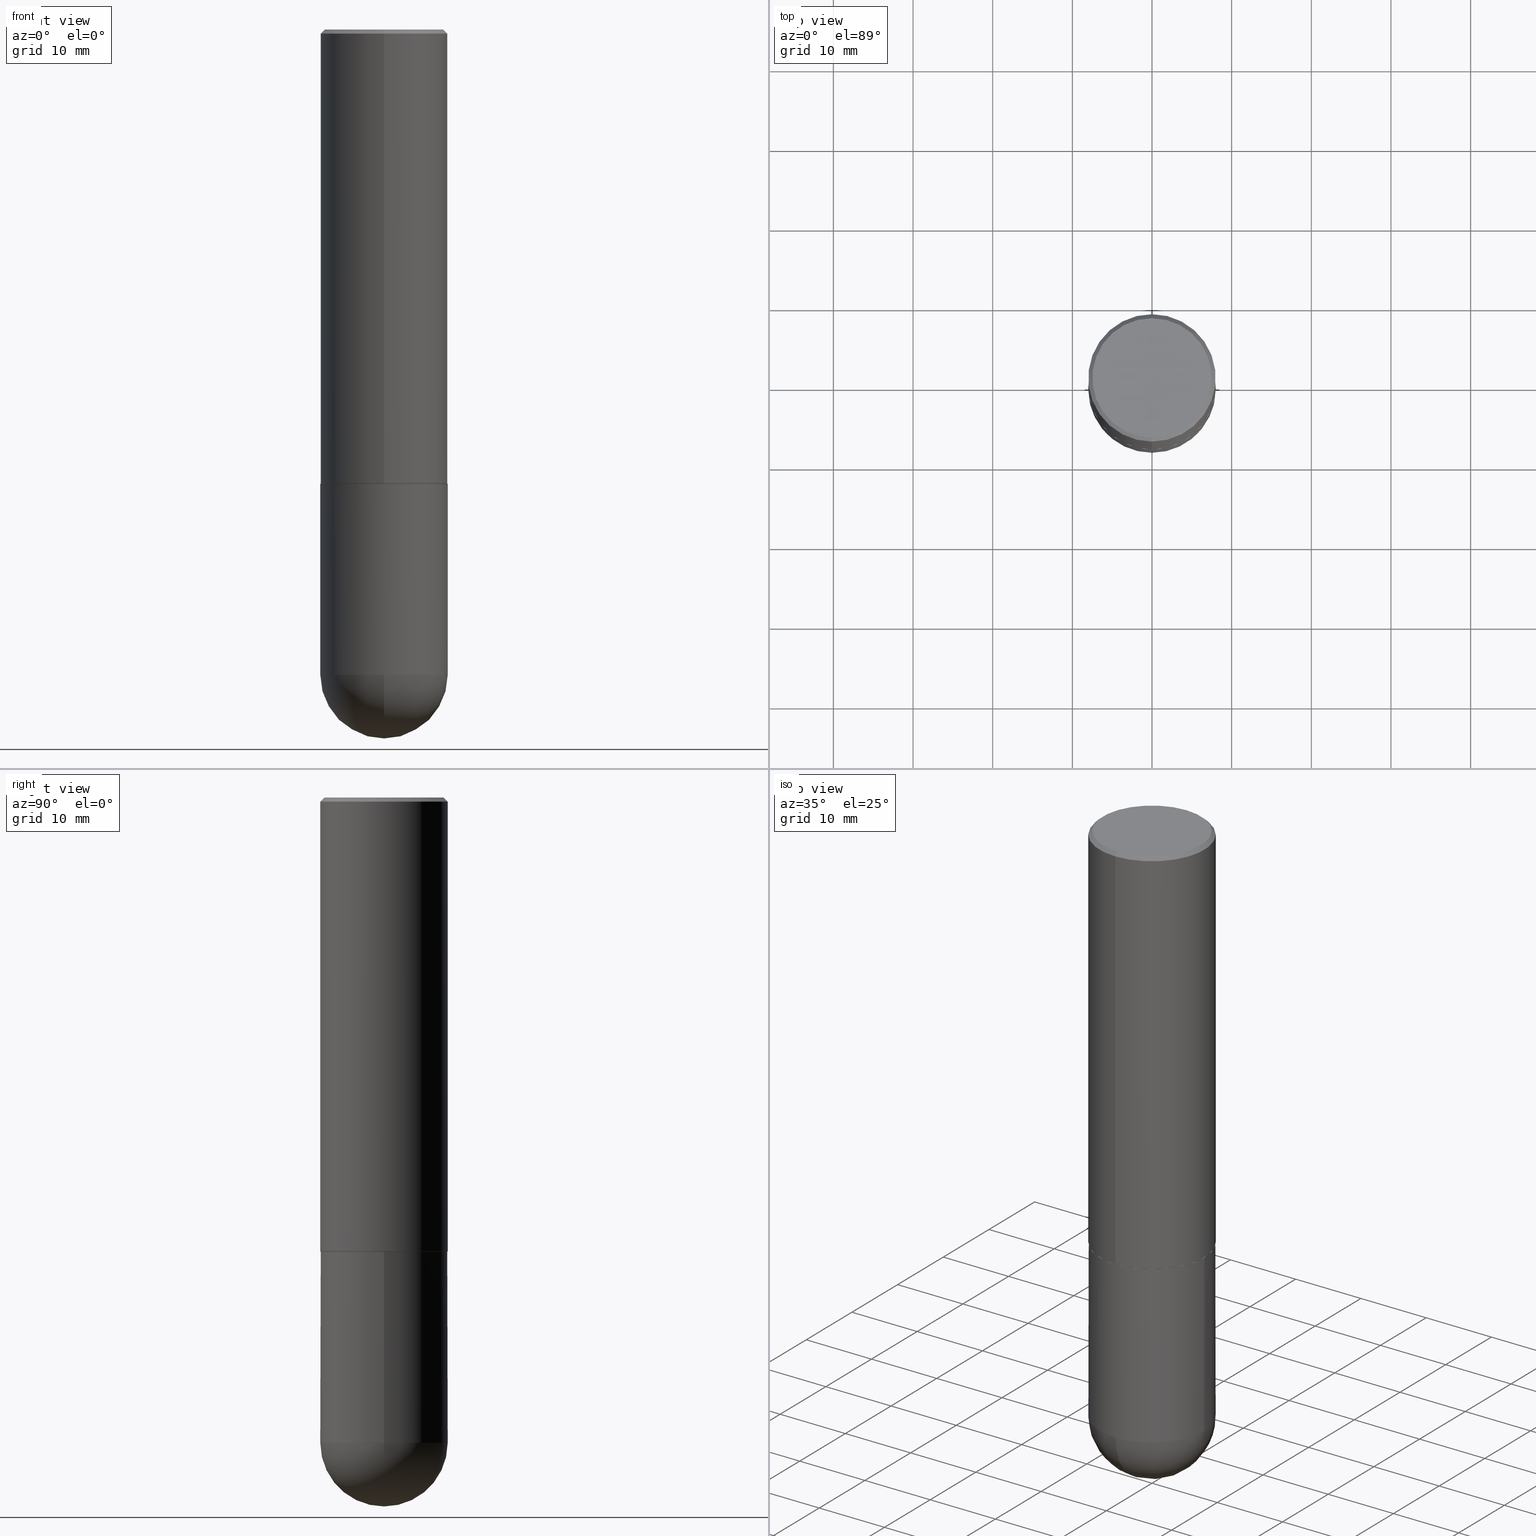
[diagram: canonical four-view strip — front | top / right | iso, engineering-drawing reading convention]
A machine part, canonical four-view strip (front | top / right | iso — engineering-drawing reading convention). The complete STEP part file that produces these views, byte-faithful:
ISO-10303-21;
HEADER;
FILE_DESCRIPTION (( 'STEP AP203' ),
    '1' );
FILE_NAME ('40174.STEP',
    '2024-04-10T11:40:53',
    ( '' ),
    ( '' ),
    'SwSTEP 2.0',
    'SolidWorks 2023',
    '' );
FILE_SCHEMA (( 'CONFIG_CONTROL_DESIGN' ));
ENDSEC;

DATA;
#1 = DIRECTION ( 'NONE',  ( 1.000000000000000000, -6.982962677686263555E-15, 0.000000000000000000 ) ) ;
#2 = FACE_OUTER_BOUND ( 'NONE', #147, .T. ) ;
#3 = DIRECTION ( 'NONE',  ( -2.446054750560314291E-29, 3.490642233148008459E-15, 1.000000000000000000 ) ) ;
#4 = DIRECTION ( 'NONE',  ( -2.446054750560314291E-29, 3.490642233148008459E-15, 1.000000000000000000 ) ) ;
#5 = PLANE ( 'NONE',  #103 ) ;
#6 = PERSON_AND_ORGANIZATION ( #402, #398 ) ;
#7 = DIRECTION ( 'NONE',  ( -6.982962677686265922E-15, -1.000000000000000000, 3.490642233148008065E-15 ) ) ;
#8 = APPROVAL_PERSON_ORGANIZATION ( #215, #301, #347 ) ;
#9 = DIRECTION ( 'NONE',  ( -6.982962677686266711E-15, -1.000000000000000000, 3.480615376543096131E-15 ) ) ;
#10 = DATE_AND_TIME ( #232, #407 ) ;
#11 = EDGE_CURVE ( 'NONE', #368, #267, #52, .T. ) ;
#12 = ORIENTED_EDGE ( 'NONE', *, *, #139, .T. ) ;
#13 = APPROVAL_ROLE ( '' ) ;
#14 = AXIS2_PLACEMENT_3D ( 'NONE', #390, #101, #173 ) ;
#15 = ADVANCED_FACE ( 'NONE', ( #51 ), #117, .T. ) ;
#16 = ORIENTED_EDGE ( 'NONE', *, *, #50, .T. ) ;
#17 = VERTEX_POINT ( 'NONE', #150 ) ;
#18 = DIRECTION ( 'NONE',  ( -2.445468806185136597E-29, 3.491481338843145583E-15, 1.000000000000000000 ) ) ;
#19 = EDGE_LOOP ( 'NONE', ( #12, #102 ) ) ;
#20 = EDGE_CURVE ( 'NONE', #364, #107, #374, .T. ) ;
#21 = APPROVAL_STATUS ( 'not_yet_approved' ) ;
#22 = EDGE_LOOP ( 'NONE', ( #136, #73, #155, #57 ) ) ;
#23 = CIRCLE ( 'NONE', #308, 0.3149500000000000077 ) ;
#24 = APPROVAL_PERSON_ORGANIZATION ( #365, #251, #13 ) ;
#25 = VERTEX_POINT ( 'NONE', #243 ) ;
#26 = EDGE_CURVE ( 'NONE', #17, #267, #357, .T. ) ;
#27 = CARTESIAN_POINT ( 'NONE',  ( 7.798477749484091354E-29, -1.113415941550384898E-14, -3.188949999999999729 ) ) ;
#28 = CARTESIAN_POINT ( 'NONE',  ( 0.000000000000000000, 0.000000000000000000, 0.000000000000000000 ) ) ;
#29 = CARTESIAN_POINT ( 'NONE',  ( -2.192301132659549031E-15, -0.3139500000000079449, -2.244099999999998651 ) ) ;
#30 = PLANE ( 'NONE',  #154 ) ;
#31 = VECTOR ( 'NONE', #130, 39.37007874015748143 ) ;
#32 = LOCAL_TIME ( 7, 40, 53.00000000000000000, #385 ) ;
#33 = CARTESIAN_POINT ( 'NONE',  ( 7.798477749484091354E-29, -1.113415941550384898E-14, -3.188949999999999729 ) ) ;
#34 = LINE ( 'NONE', #163, #31 ) ;
#35 = DIRECTION ( 'NONE',  ( -4.851104656540959542E-15, -0.7071067811865493491, -0.7071067811865454633 ) ) ;
#36 = CC_DESIGN_PERSON_AND_ORGANIZATION_ASSIGNMENT ( #406, #375, ( #41 ) ) ;
#37 = DIRECTION ( 'NONE',  ( -7.105427357600999492E-15, -1.000000000000000000, 0.000000000000000000 ) ) ;
#38 = CARTESIAN_POINT ( 'NONE',  ( 0.3149500000000000077, -1.168398043933816632E-14, -3.188949999999999729 ) ) ;
#39 = AXIS2_PLACEMENT_3D ( 'NONE', #95, #222, #123 ) ;
#40 = AXIS2_PLACEMENT_3D ( 'NONE', #97, #4, #280 ) ;
#41 = PRODUCT ( '40174', '40174', '', ( #47 ) ) ;
#42 = PRODUCT_DEFINITION ( 'UNKNOWN', '', #358, #334 ) ;
#43 = COORDINATED_UNIVERSAL_TIME_OFFSET ( 5, 0, .BEHIND. ) ;
#44 = SPHERICAL_SURFACE ( 'NONE', #14, 0.3149500000000001743 ) ;
#45 = EDGE_CURVE ( 'NONE', #25, #230, #177, .T. ) ;
#46 = SECURITY_CLASSIFICATION ( '', '', #330 ) ;
#47 = MECHANICAL_CONTEXT ( 'NONE', #206, 'mechanical' ) ;
#48 = ORIENTED_EDGE ( 'NONE', *, *, #369, .T. ) ;
#49 = AXIS2_PLACEMENT_3D ( 'NONE', #93, #185, #1 ) ;
#50 = EDGE_CURVE ( 'NONE', #77, #107, #23, .T. ) ;
#51 = FACE_OUTER_BOUND ( 'NONE', #152, .T. ) ;
#52 = LINE ( 'NONE', #78, #405 ) ;
#53 = COORDINATED_UNIVERSAL_TIME_OFFSET ( 5, 0, .BEHIND. ) ;
#54 = ORIENTED_EDGE ( 'NONE', *, *, #219, .T. ) ;
#55 = AXIS2_PLACEMENT_3D ( 'NONE', #354, #160, #248 ) ;
#56 = LOCAL_TIME ( 7, 40, 53.00000000000000000, #362 ) ;
#57 = ORIENTED_EDGE ( 'NONE', *, *, #69, .F. ) ;
#58 = DIRECTION ( 'NONE',  ( -4.937700262164884886E-15, -0.7071067811865933139, 0.7071067811865017205 ) ) ;
#59 = FACE_OUTER_BOUND ( 'NONE', #19, .T. ) ;
#60 = DIRECTION ( 'NONE',  ( -2.445468806185136597E-29, 3.491481338843145583E-15, 1.000000000000000000 ) ) ;
#61 = LOCAL_TIME ( 7, 40, 53.00000000000000000, #43 ) ;
#62 = ADVANCED_FACE ( 'NONE', ( #226 ), #349, .T. ) ;
#63 = FACE_OUTER_BOUND ( 'NONE', #331, .T. ) ;
#64 = DIRECTION ( 'NONE',  ( -6.982962677686265922E-15, -1.000000000000000000, 3.490642233148008854E-15 ) ) ;
#65 = LENGTH_MEASURE_WITH_UNIT ( LENGTH_MEASURE( 0.02539999999999999897 ), #140 );
#66 = CARTESIAN_POINT ( 'NONE',  ( 5.489191465732400320E-29, -7.833350235407443632E-15, -2.244099999999999540 ) ) ;
#67 = PERSON_AND_ORGANIZATION_ROLE ( 'classification_officer' ) ;
#68 = CARTESIAN_POINT ( 'NONE',  ( 7.467357971570205107E-29, -1.160834178364390085E-14, -3.188949999999999729 ) ) ;
#69 = EDGE_CURVE ( 'NONE', #302, #278, #313, .T. ) ;
#70 = AXIS2_PLACEMENT_3D ( 'NONE', #383, #257, #37 ) ;
#71 = EDGE_LOOP ( 'NONE', ( #212, #203, #174, #181 ) ) ;
#72 = APPLICATION_PROTOCOL_DEFINITION ( 'international standard', 'config_control_design', 1994, #206 ) ;
#73 = ORIENTED_EDGE ( 'NONE', *, *, #106, .T. ) ;
#74 = ORIENTED_EDGE ( 'NONE', *, *, #266, .T. ) ;
#75 = CARTESIAN_POINT ( 'NONE',  ( 5.489191465732400320E-29, -7.833350235407443632E-15, -2.244099999999999540 ) ) ;
#76 = CARTESIAN_POINT ( 'NONE',  ( 0.000000000000000000, 0.000000000000000000, 0.000000000000000000 ) ) ;
#77 = VERTEX_POINT ( 'NONE', #221 ) ;
#78 = CARTESIAN_POINT ( 'NONE',  ( -0.3149500000000000077, 2.237854346276435590E-15, -1.549218606675782676E-29 ) ) ;
#79 = CC_DESIGN_PERSON_AND_ORGANIZATION_ASSIGNMENT ( #6, #389, ( #358 ) ) ;
#80 = DIRECTION ( 'NONE',  ( -2.445468806185136877E-29, 3.491481338843145188E-15, 1.000000000000000000 ) ) ;
#81 = CIRCLE ( 'NONE', #397, 0.3149500000000000077 ) ;
#82 = CIRCLE ( 'NONE', #343, 0.3149500000000000077 ) ;
#83 = ORIENTED_EDGE ( 'NONE', *, *, #50, .F. ) ;
#84 = APPLICATION_PROTOCOL_DEFINITION ( 'international standard', 'config_control_design', 1994, #323 ) ;
#85 = DIRECTION ( 'NONE',  ( -6.982962677686264344E-15, -1.000000000000000000, 3.490642233148007670E-15 ) ) ;
#86 = EDGE_LOOP ( 'NONE', ( #270, #394, #211, #344 ) ) ;
#87 = VECTOR ( 'NONE', #192, 39.37007874015748143 ) ;
#88 = CARTESIAN_POINT ( 'NONE',  ( -5.423274087960184450E-45, 7.739282846810618140E-31, 2.217151552604406197E-16 ) ) ;
#89 = CARTESIAN_POINT ( 'NONE',  ( -2.192301132659549031E-15, -0.3139500000000079449, -2.244099999999998651 ) ) ;
#90 = CYLINDRICAL_SURFACE ( 'NONE', #39, 0.3149500000000000077 ) ;
#91 = CARTESIAN_POINT ( 'NONE',  ( 2.129454468560426178E-15, 0.2949499999999997679, -8.078497714065635911E-16 ) ) ;
#92 = ADVANCED_FACE ( 'NONE', ( #59 ), #287, .F. ) ;
#93 = CARTESIAN_POINT ( 'NONE',  ( 7.798477749484091354E-29, -1.113415941550384898E-14, -3.188949999999999729 ) ) ;
#94 = AXIS2_PLACEMENT_3D ( 'NONE', #303, #124, #161 ) ;
#95 = CARTESIAN_POINT ( 'NONE',  ( 0.000000000000000000, 0.000000000000000000, 0.000000000000000000 ) ) ;
#96 = CALENDAR_DATE ( 2024, 10, 4 ) ;
#97 = CARTESIAN_POINT ( 'NONE',  ( 5.486745410981840048E-29, -7.829859593174295686E-15, -2.243099999999999650 ) ) ;
#98 = CARTESIAN_POINT ( 'NONE',  ( 4.892109501120646730E-31, -6.981284466296042310E-17, -0.02000000000000007327 ) ) ;
#99 = EDGE_CURVE ( 'NONE', #274, #25, #328, .T. ) ;
#100 = DIRECTION ( 'NONE',  ( -2.446054750560314291E-29, 3.490642233148008459E-15, 1.000000000000000000 ) ) ;
#101 = DIRECTION ( 'NONE',  ( -1.000000000000000000, 6.982962677686265133E-15, -4.883557194083112901E-29 ) ) ;
#102 = ORIENTED_EDGE ( 'NONE', *, *, #175, .T. ) ;
#103 = AXIS2_PLACEMENT_3D ( 'NONE', #66, #125, #64 ) ;
#104 = PRODUCT_DEFINITION_SHAPE ( 'NONE', 'NONE',  #42 ) ;
#105 = COORDINATED_UNIVERSAL_TIME_OFFSET ( 5, 0, .BEHIND. ) ;
#106 = EDGE_CURVE ( 'NONE', #216, #346, #281, .T. ) ;
#107 = VERTEX_POINT ( 'NONE', #166 ) ;
#108 = AXIS2_PLACEMENT_3D ( 'NONE', #320, #246, #352 ) ;
#109 = DIRECTION ( 'NONE',  ( 1.000000000000000000, -6.982962677686263555E-15, 0.000000000000000000 ) ) ;
#110 = EDGE_CURVE ( 'NONE', #230, #341, #300, .T. ) ;
#111 = ORIENTED_EDGE ( 'NONE', *, *, #144, .T. ) ;
#112 = CARTESIAN_POINT ( 'NONE',  ( -2.199284095337290265E-15, -0.3149500000000001743, 1.099377771329965583E-15 ) ) ;
#113 = ORIENTED_EDGE ( 'NONE', *, *, #45, .T. ) ;
#114 = CLOSED_SHELL ( 'NONE', ( #236, #15, #209, #62, #272, #204, #191, #92 ) ) ;
#115 = VECTOR ( 'NONE', #35, 39.37007874015748854 ) ;
#116 = PERSON_AND_ORGANIZATION ( #402, #398 ) ;
#117 = CYLINDRICAL_SURFACE ( 'NONE', #255, 0.3149500000000001743 ) ;
#118 = ORIENTED_EDGE ( 'NONE', *, *, #367, .F. ) ;
#119 = DIRECTION ( 'NONE',  ( -2.446054750560314291E-29, 3.490642233148008459E-15, 1.000000000000000000 ) ) ;
#120 = FACE_OUTER_BOUND ( 'NONE', #391, .T. ) ;
#121 = CARTESIAN_POINT ( 'NONE',  ( 7.798477749484091354E-29, -1.113415941550384898E-14, -3.188949999999999729 ) ) ;
#122 = ADVANCED_FACE ( 'NONE', ( #120 ), #381, .T. ) ;
#123 = DIRECTION ( 'NONE',  ( 1.000000000000000000, -6.982962677686266711E-15, 4.876176775795936353E-29 ) ) ;
#124 = DIRECTION ( 'NONE',  ( -2.445468806185136597E-29, 3.491481338843145583E-15, 1.000000000000000000 ) ) ;
#125 = DIRECTION ( 'NONE',  ( -2.446054750560313731E-29, 3.490642233148008854E-15, 1.000000000000000000 ) ) ;
#126 = DATE_TIME_ROLE ( 'classification_date' ) ;
#127 = FACE_OUTER_BOUND ( 'NONE', #239, .T. ) ;
#128 = EDGE_CURVE ( 'NONE', #230, #17, #34, .T. ) ;
#129 = AXIS2_PLACEMENT_3D ( 'NONE', #75, #156, #148 ) ;
#130 = DIRECTION ( 'NONE',  ( -2.445468806185136877E-29, 3.491481338843145188E-15, 1.000000000000000000 ) ) ;
#131 = DATE_TIME_ROLE ( 'creation_date' ) ;
#132 = FACE_OUTER_BOUND ( 'NONE', #22, .T. ) ;
#133 = CALENDAR_DATE ( 2024, 10, 4 ) ;
#134 = DIRECTION ( 'NONE',  ( 1.000000000000000000, -6.982962677686265922E-15, 4.883557194083112340E-29 ) ) ;
#135 = PERSON_AND_ORGANIZATION ( #402, #398 ) ;
#136 = ORIENTED_EDGE ( 'NONE', *, *, #231, .T. ) ;
#137 = AXIS2_PLACEMENT_3D ( 'NONE', #98, #196, #325 ) ;
#138 = AXIS2_PLACEMENT_3D ( 'NONE', #28, #312, #158 ) ;
#139 = EDGE_CURVE ( 'NONE', #364, #296, #262, .T. ) ;
#140 =( LENGTH_UNIT ( ) NAMED_UNIT ( * ) SI_UNIT ( $, .METRE. ) );
#141 = ORIENTED_EDGE ( 'NONE', *, *, #110, .T. ) ;
#142 = ORIENTED_EDGE ( 'NONE', *, *, #345, .F. ) ;
#143 = ADVANCED_BREP_SHAPE_REPRESENTATION ( '40174', ( #297, #307, #380 ), #290 ) ;
#144 = EDGE_CURVE ( 'NONE', #341, #368, #81, .T. ) ;
#145 = ORIENTED_EDGE ( 'NONE', *, *, #345, .T. ) ;
#146 = CIRCLE ( 'NONE', #329, 0.3149500000000001743 ) ;
#147 = EDGE_LOOP ( 'NONE', ( #333, #207 ) ) ;
#148 = DIRECTION ( 'NONE',  ( -6.982962677686266711E-15, -1.000000000000000000, 3.480615376543096131E-15 ) ) ;
#149 = DIRECTION ( 'NONE',  ( 1.000000000000000000, -6.982962677686263555E-15, 0.000000000000000000 ) ) ;
#150 = CARTESIAN_POINT ( 'NONE',  ( 0.3149500000000000077, -1.003451736783519063E-14, -2.244099999999999540 ) ) ;
#151 = DATE_AND_TIME ( #305, #387 ) ;
#152 = EDGE_LOOP ( 'NONE', ( #238, #396, #83, #142 ) ) ;
#153 = CLOSED_SHELL ( 'NONE', ( #324, #410, #122, #315, #165 ) ) ;
#154 = AXIS2_PLACEMENT_3D ( 'NONE', #227, #360, #283 ) ;
#155 = ORIENTED_EDGE ( 'NONE', *, *, #277, .F. ) ;
#156 = DIRECTION ( 'NONE',  ( -2.446054750560314291E-29, 3.490642233148008459E-15, 1.000000000000000000 ) ) ;
#157 = CARTESIAN_POINT ( 'NONE',  ( 2.234301632597690701E-15, 0.3139499999999922353, -2.244100000000000872 ) ) ;
#158 = DIRECTION ( 'NONE',  ( -6.982962677686264344E-15, -1.000000000000000000, 3.490642233148007670E-15 ) ) ;
#159 = APPROVAL ( #170, 'UNSPECIFIED' ) ;
#160 = DIRECTION ( 'NONE',  ( 2.446054750560314291E-29, -3.490642233148008459E-15, -1.000000000000000000 ) ) ;
#161 = DIRECTION ( 'NONE',  ( 1.000000000000000000, -6.982962677686266711E-15, 4.876176775795936353E-29 ) ) ;
#162 = APPROVAL_PERSON_ORGANIZATION ( #229, #159, #264 ) ;
#163 = CARTESIAN_POINT ( 'NONE',  ( 0.3149500000000000077, -2.199284095337289871E-15, 1.535751875536930130E-29 ) ) ;
#164 = CYLINDRICAL_SURFACE ( 'NONE', #138, 0.3149500000000001743 ) ;
#165 = ADVANCED_FACE ( 'NONE', ( #316 ), #90, .T. ) ;
#166 = CARTESIAN_POINT ( 'NONE',  ( 2.199284095337289871E-15, 0.3149499999999999522, -0.02000000000000117309 ) ) ;
#167 = AXIS2_PLACEMENT_3D ( 'NONE', #285, #187, #224 ) ;
#168 = CARTESIAN_POINT ( 'NONE',  ( 5.489191465732400320E-29, -7.833350235407443632E-15, -2.244099999999999540 ) ) ;
#169 =( CONVERSION_BASED_UNIT ( 'INCH', #65 ) LENGTH_UNIT ( ) NAMED_UNIT ( #298 ) );
#170 = APPROVAL_STATUS ( 'not_yet_approved' ) ;
#171 = VECTOR ( 'NONE', #359, 39.37007874015748143 ) ;
#172 = AXIS2_PLACEMENT_3D ( 'NONE', #168, #291, #9 ) ;
#173 = DIRECTION ( 'NONE',  ( 6.982962677686265133E-15, 1.000000000000000000, -3.469564049740291586E-15 ) ) ;
#174 = ORIENTED_EDGE ( 'NONE', *, *, #339, .F. ) ;
#175 = EDGE_CURVE ( 'NONE', #296, #364, #218, .T. ) ;
#176 = ORIENTED_EDGE ( 'NONE', *, *, #11, .T. ) ;
#177 = CIRCLE ( 'NONE', #208, 0.3149500000000000077 ) ;
#178 = CYLINDRICAL_SURFACE ( 'NONE', #94, 0.3149500000000000077 ) ;
#179 = EDGE_LOOP ( 'NONE', ( #111, #176, #350, #299, #141 ) ) ;
#180 = DIRECTION ( 'NONE',  ( -2.446054750560314291E-29, 3.490642233148008459E-15, 1.000000000000000000 ) ) ;
#181 = ORIENTED_EDGE ( 'NONE', *, *, #144, .F. ) ;
#182 = VECTOR ( 'NONE', #408, 39.37007874015748854 ) ;
#183 = ORIENTED_EDGE ( 'NONE', *, *, #20, .F. ) ;
#184 = LINE ( 'NONE', #254, #115 ) ;
#185 = DIRECTION ( 'NONE',  ( -2.445468806185136597E-29, 3.491481338843145583E-15, 1.000000000000000000 ) ) ;
#186 = CARTESIAN_POINT ( 'NONE',  ( 2.237854346276435985E-15, 0.3149500000000001743, -1.099377771329965583E-15 ) ) ;
#187 = DIRECTION ( 'NONE',  ( -1.000000000000000000, 6.982962677686265133E-15, -4.883557194083112901E-29 ) ) ;
#188 = DIRECTION ( 'NONE',  ( 1.000000000000000000, -6.982962677686266711E-15, 0.000000000000000000 ) ) ;
#189 = VECTOR ( 'NONE', #249, 39.37007874015748143 ) ;
#190 = DIRECTION ( 'NONE',  ( -6.982962677686265922E-15, -1.000000000000000000, 3.496670018878889100E-15 ) ) ;
#191 = ADVANCED_FACE ( 'NONE', ( #63 ), #5, .F. ) ;
#192 = DIRECTION ( 'NONE',  ( -2.446054750560314291E-29, 3.490642233148008854E-15, 1.000000000000000000 ) ) ;
#193 = DIRECTION ( 'NONE',  ( -2.446054750560314291E-29, 3.490642233148008459E-15, 1.000000000000000000 ) ) ;
#194 = DATE_AND_TIME ( #332, #56 ) ;
#195 = CARTESIAN_POINT ( 'NONE',  ( 4.892109501120646730E-31, -6.981284466296042310E-17, -0.02000000000000007327 ) ) ;
#196 = DIRECTION ( 'NONE',  ( 2.446054750560314291E-29, -3.490642233148008459E-15, -1.000000000000000000 ) ) ;
#197 = DATE_AND_TIME ( #96, #32 ) ;
#198 = DIRECTION ( 'NONE',  ( 6.982962677686264344E-15, 1.000000000000000000, 0.000000000000000000 ) ) ;
#199 = AXIS2_PLACEMENT_3D ( 'NONE', #88, #3, #7 ) ;
#200 = CC_DESIGN_APPROVAL ( #301, ( #42 ) ) ;
#201 = PERSON_AND_ORGANIZATION ( #402, #398 ) ;
#202 =( NAMED_UNIT ( * ) SI_UNIT ( $, .STERADIAN. ) SOLID_ANGLE_UNIT ( ) );
#203 = ORIENTED_EDGE ( 'NONE', *, *, #99, .T. ) ;
#204 = ADVANCED_FACE ( 'NONE', ( #252 ), #284, .T. ) ;
#205 = ORIENTED_EDGE ( 'NONE', *, *, #20, .T. ) ;
#206 = APPLICATION_CONTEXT ( 'configuration controlled 3d designs of mechanical parts and assemblies' ) ;
#207 = ORIENTED_EDGE ( 'NONE', *, *, #367, .T. ) ;
#208 = AXIS2_PLACEMENT_3D ( 'NONE', #27, #399, #109 ) ;
#209 = ADVANCED_FACE ( 'NONE', ( #279 ), #317, .T. ) ;
#210 = DIRECTION ( 'NONE',  ( 0.000000000000000000, 0.000000000000000000, 1.000000000000000000 ) ) ;
#211 = ORIENTED_EDGE ( 'NONE', *, *, #69, .T. ) ;
#212 = ORIENTED_EDGE ( 'NONE', *, *, #393, .F. ) ;
#213 = CIRCLE ( 'NONE', #269, 0.3149500000000000077 ) ;
#214 = ORIENTED_EDGE ( 'NONE', *, *, #175, .F. ) ;
#215 = PERSON_AND_ORGANIZATION ( #402, #398 ) ;
#216 = VERTEX_POINT ( 'NONE', #157 ) ;
#217 = DIRECTION ( 'NONE',  ( -2.445468806185136597E-29, 3.491481338843145583E-15, 1.000000000000000000 ) ) ;
#218 = CIRCLE ( 'NONE', #268, 0.2949499999999997679 ) ;
#219 = EDGE_CURVE ( 'NONE', #346, #278, #372, .T. ) ;
#220 = CIRCLE ( 'NONE', #40, 0.3149500000000002853 ) ;
#221 = CARTESIAN_POINT ( 'NONE',  ( -2.160713844398143363E-15, -0.3149500000000000632, -0.01999999999999896999 ) ) ;
#222 = DIRECTION ( 'NONE',  ( -2.445468806185136597E-29, 3.491481338843145583E-15, 1.000000000000000000 ) ) ;
#223 = CARTESIAN_POINT ( 'NONE',  ( 5.487876547960064752E-29, -7.835233272497900762E-15, -2.244099999999999540 ) ) ;
#224 = DIRECTION ( 'NONE',  ( 6.982962677686265133E-15, 1.000000000000000000, -3.469564049740291586E-15 ) ) ;
#225 = CONICAL_SURFACE ( 'NONE', #129, 0.3139500000000000624, 0.7853981633975165577 ) ;
#226 = FACE_OUTER_BOUND ( 'NONE', #271, .T. ) ;
#227 = CARTESIAN_POINT ( 'NONE',  ( 2.199284095337344302E-15, 0.3149499999999921807, -2.244100000000000872 ) ) ;
#228 = CARTESIAN_POINT ( 'NONE',  ( 2.230748918918889408E-15, 0.3139499999999922353, -2.244100000000000872 ) ) ;
#229 = PERSON_AND_ORGANIZATION ( #402, #398 ) ;
#230 = VERTEX_POINT ( 'NONE', #38 ) ;
#231 = EDGE_CURVE ( 'NONE', #302, #216, #373, .T. ) ;
#232 = CALENDAR_DATE ( 2024, 10, 4 ) ;
#233 = FACE_OUTER_BOUND ( 'NONE', #71, .T. ) ;
#234 = UNCERTAINTY_MEASURE_WITH_UNIT (LENGTH_MEASURE( 1.000000000000000082E-05 ), #169, 'distance_accuracy_value', 'NONE');
#235 = ORIENTED_EDGE ( 'NONE', *, *, #231, .F. ) ;
#236 = ADVANCED_FACE ( 'NONE', ( #132 ), #225, .T. ) ;
#237 = CARTESIAN_POINT ( 'NONE',  ( 5.489191465732400320E-29, -7.833350235407443632E-15, -2.244099999999999540 ) ) ;
#238 = ORIENTED_EDGE ( 'NONE', *, *, #277, .T. ) ;
#239 = EDGE_LOOP ( 'NONE', ( #294, #54, #145, #241 ) ) ;
#240 = EDGE_CURVE ( 'NONE', #346, #107, #355, .T. ) ;
#241 = ORIENTED_EDGE ( 'NONE', *, *, #369, .F. ) ;
#242 = PERSON_AND_ORGANIZATION_ROLE ( 'creator' ) ;
#243 = CARTESIAN_POINT ( 'NONE',  ( -2.237854346276359071E-15, -0.3149500000000114985, -3.188949999999998841 ) ) ;
#244 = CC_DESIGN_PERSON_AND_ORGANIZATION_ASSIGNMENT ( #116, #242, ( #42 ) ) ;
#245 = CARTESIAN_POINT ( 'NONE',  ( 2.199284095337289871E-15, 0.3149499999999999522, -0.02000000000000117309 ) ) ;
#246 = DIRECTION ( 'NONE',  ( 2.446054750560313731E-29, -3.490642233148008854E-15, -1.000000000000000000 ) ) ;
#247 = CARTESIAN_POINT ( 'NONE',  ( -0.3149500000000000077, -7.246841997724440463E-15, -2.244099999999999540 ) ) ;
#248 = DIRECTION ( 'NONE',  ( 6.982962677686265922E-15, 1.000000000000000000, -3.496670018878889100E-15 ) ) ;
#249 = DIRECTION ( 'NONE',  ( -2.446054750560314291E-29, 3.490642233148008854E-15, 1.000000000000000000 ) ) ;
#250 = DIRECTION ( 'NONE',  ( -6.982962677686265922E-15, -1.000000000000000000, 3.490642233148008065E-15 ) ) ;
#251 = APPROVAL ( #292, 'UNSPECIFIED' ) ;
#252 = FACE_OUTER_BOUND ( 'NONE', #86, .T. ) ;
#253 = DATE_AND_TIME ( #133, #61 ) ;
#254 = CARTESIAN_POINT ( 'NONE',  ( -2.160713844398143363E-15, -0.3149500000000000632, -0.01999999999999896999 ) ) ;
#255 = AXIS2_PLACEMENT_3D ( 'NONE', #276, #180, #85 ) ;
#256 = CC_DESIGN_SECURITY_CLASSIFICATION ( #46, ( #358 ) ) ;
#257 = DIRECTION ( 'NONE',  ( -1.000000000000000000, 7.105427357601001070E-15, -4.926315508542082329E-29 ) ) ;
#258 = APPROVAL_DATE_TIME ( #10, #159 ) ;
#259 = DIRECTION ( 'NONE',  ( -6.982962677686265922E-15, -1.000000000000000000, 3.469564049740290009E-15 ) ) ;
#260 = CC_DESIGN_DATE_AND_TIME_ASSIGNMENT ( #253, #131, ( #42 ) ) ;
#261 = ORIENTED_EDGE ( 'NONE', *, *, #393, .T. ) ;
#262 = CIRCLE ( 'NONE', #199, 0.2949499999999997679 ) ;
#263 = CC_DESIGN_APPROVAL ( #251, ( #46 ) ) ;
#264 = APPROVAL_ROLE ( '' ) ;
#265 = DIRECTION ( 'NONE',  ( -2.446054750560314291E-29, 3.490642233148008459E-15, 1.000000000000000000 ) ) ;
#266 = EDGE_CURVE ( 'NONE', #296, #77, #184, .T. ) ;
#267 = VERTEX_POINT ( 'NONE', #247 ) ;
#268 = AXIS2_PLACEMENT_3D ( 'NONE', #288, #356, #250 ) ;
#269 = AXIS2_PLACEMENT_3D ( 'NONE', #223, #60, #188 ) ;
#270 = ORIENTED_EDGE ( 'NONE', *, *, #106, .F. ) ;
#271 = EDGE_LOOP ( 'NONE', ( #306, #403, #205, #48 ) ) ;
#272 = ADVANCED_FACE ( 'NONE', ( #127 ), #164, .T. ) ;
#273 = CARTESIAN_POINT ( 'NONE',  ( 2.199284095337366390E-15, 0.3149499999999886835, -3.188950000000001062 ) ) ;
#274 = VERTEX_POINT ( 'NONE', #386 ) ;
#275 = APPROVAL_DATE_TIME ( #151, #301 ) ;
#276 = CARTESIAN_POINT ( 'NONE',  ( 0.000000000000000000, 0.000000000000000000, 0.000000000000000000 ) ) ;
#277 = EDGE_CURVE ( 'NONE', #278, #346, #220, .T. ) ;
#278 = VERTEX_POINT ( 'NONE', #286 ) ;
#279 = FACE_OUTER_BOUND ( 'NONE', #377, .T. ) ;
#280 = DIRECTION ( 'NONE',  ( -6.982962677686265922E-15, -1.000000000000000000, 3.469564049740290009E-15 ) ) ;
#281 = LINE ( 'NONE', #228, #171 ) ;
#282 = AXIS2_PLACEMENT_3D ( 'NONE', #384, #321, #388 ) ;
#283 = DIRECTION ( 'NONE',  ( -1.000000000000000000, 6.982962677686265922E-15, -4.876176775795935793E-29 ) ) ;
#284 = CONICAL_SURFACE ( 'NONE', #282, 0.3139500000000000624, 0.7853981633975165577 ) ;
#285 = CARTESIAN_POINT ( 'NONE',  ( 7.467357971570205107E-29, -1.160834178364390085E-14, -3.188949999999999729 ) ) ;
#286 = CARTESIAN_POINT ( 'NONE',  ( -2.199284095337236228E-15, -0.3149500000000081124, -2.243099999999998317 ) ) ;
#287 = PLANE ( 'NONE',  #108 ) ;
#288 = CARTESIAN_POINT ( 'NONE',  ( -5.423274087960184450E-45, 7.739282846810618140E-31, 2.217151552604406197E-16 ) ) ;
#289 = VECTOR ( 'NONE', #58, 39.37007874015748143 ) ;
#290 =( GEOMETRIC_REPRESENTATION_CONTEXT ( 3 ) GLOBAL_UNCERTAINTY_ASSIGNED_CONTEXT ( ( #234 ) ) GLOBAL_UNIT_ASSIGNED_CONTEXT ( ( #169, #327, #202 ) ) REPRESENTATION_CONTEXT ( 'NONE', 'WORKASPACE' ) );
#291 = DIRECTION ( 'NONE',  ( -2.446054750560314291E-29, 3.490642233148008459E-15, 1.000000000000000000 ) ) ;
#292 = APPROVAL_STATUS ( 'not_yet_approved' ) ;
#293 = DIRECTION ( 'NONE',  ( -6.982962677686266711E-15, -1.000000000000000000, 3.480615376543096131E-15 ) ) ;
#294 = ORIENTED_EDGE ( 'NONE', *, *, #240, .F. ) ;
#295 = SHAPE_DEFINITION_REPRESENTATION ( #104, #143 ) ;
#296 = VERTEX_POINT ( 'NONE', #412 ) ;
#297 = MANIFOLD_SOLID_BREP ( 'Body-Move/Copy2[1]', #153 ) ;
#298 = DIMENSIONAL_EXPONENTS ( 1.000000000000000000, 0.000000000000000000, 0.000000000000000000, 0.000000000000000000, 0.000000000000000000, 0.000000000000000000, 0.000000000000000000 ) ;
#299 = ORIENTED_EDGE ( 'NONE', *, *, #128, .F. ) ;
#300 = CIRCLE ( 'NONE', #49, 0.3149500000000000077 ) ;
#301 = APPROVAL ( #21, 'UNSPECIFIED' ) ;
#302 = VERTEX_POINT ( 'NONE', #89 ) ;
#303 = CARTESIAN_POINT ( 'NONE',  ( 0.000000000000000000, 0.000000000000000000, 0.000000000000000000 ) ) ;
#304 = EDGE_LOOP ( 'NONE', ( #371, #348, #113, #309, #118 ) ) ;
#305 = CALENDAR_DATE ( 2024, 10, 4 ) ;
#306 = ORIENTED_EDGE ( 'NONE', *, *, #266, .F. ) ;
#307 = MANIFOLD_SOLID_BREP ( 'Body-Move/Copy2[2]', #114 ) ;
#308 = AXIS2_PLACEMENT_3D ( 'NONE', #370, #193, #190 ) ;
#309 = ORIENTED_EDGE ( 'NONE', *, *, #128, .T. ) ;
#310 = CIRCLE ( 'NONE', #337, 0.3139500000000000624 ) ;
#311 = DIRECTION ( 'NONE',  ( 1.000000000000000000, -6.982962677686266711E-15, 0.000000000000000000 ) ) ;
#312 = DIRECTION ( 'NONE',  ( -2.446054750560314291E-29, 3.490642233148008459E-15, 1.000000000000000000 ) ) ;
#313 = LINE ( 'NONE', #29, #289 ) ;
#314 = FACE_OUTER_BOUND ( 'NONE', #179, .T. ) ;
#315 = ADVANCED_FACE ( 'NONE', ( #2 ), #30, .F. ) ;
#316 = FACE_OUTER_BOUND ( 'NONE', #304, .T. ) ;
#317 = CONICAL_SURFACE ( 'NONE', #137, 0.3149500000000000077, 0.7853981633974476129 ) ;
#318 = CARTESIAN_POINT ( 'NONE',  ( -0.3149500000000000077, -7.246841997724442041E-15, -3.188949999999999729 ) ) ;
#319 = AXIS2_PLACEMENT_3D ( 'NONE', #195, #100, #363 ) ;
#320 = CARTESIAN_POINT ( 'NONE',  ( 2.059624841783562486E-15, 0.2949499999999997679, -9.187073490367838516E-16 ) ) ;
#321 = DIRECTION ( 'NONE',  ( -2.446054750560314291E-29, 3.490642233148008459E-15, 1.000000000000000000 ) ) ;
#322 = PERSON_AND_ORGANIZATION_ROLE ( 'design_supplier' ) ;
#323 = APPLICATION_CONTEXT ( 'configuration controlled 3d designs of mechanical parts and assemblies' ) ;
#324 = ADVANCED_FACE ( 'NONE', ( #314 ), #178, .T. ) ;
#325 = DIRECTION ( 'NONE',  ( 6.982962677686265922E-15, 1.000000000000000000, -3.496670018878889100E-15 ) ) ;
#326 = APPROVAL_DATE_TIME ( #197, #251 ) ;
#327 =( NAMED_UNIT ( * ) PLANE_ANGLE_UNIT ( ) SI_UNIT ( $, .RADIAN. ) );
#328 = CIRCLE ( 'NONE', #70, 0.3149500000000001743 ) ;
#329 = AXIS2_PLACEMENT_3D ( 'NONE', #68, #134, #198 ) ;
#330 = SECURITY_CLASSIFICATION_LEVEL ( 'unclassified' ) ;
#331 = EDGE_LOOP ( 'NONE', ( #235, #409 ) ) ;
#332 = CALENDAR_DATE ( 2024, 10, 4 ) ;
#333 = ORIENTED_EDGE ( 'NONE', *, *, #26, .T. ) ;
#334 = DESIGN_CONTEXT ( 'detailed design', #323, 'design' ) ;
#335 = CC_DESIGN_DATE_AND_TIME_ASSIGNMENT ( #194, #126, ( #46 ) ) ;
#336 = AXIS2_PLACEMENT_3D ( 'NONE', #378, #217, #311 ) ;
#337 = AXIS2_PLACEMENT_3D ( 'NONE', #237, #265, #293 ) ;
#338 = ORIENTED_EDGE ( 'NONE', *, *, #45, .F. ) ;
#339 = EDGE_CURVE ( 'NONE', #368, #25, #82, .T. ) ;
#340 = DIRECTION ( 'NONE',  ( 1.000000000000000000, 0.000000000000000000, 0.000000000000000000 ) ) ;
#341 = VERTEX_POINT ( 'NONE', #273 ) ;
#342 = AXIS2_PLACEMENT_3D ( 'NONE', #411, #119, #259 ) ;
#343 = AXIS2_PLACEMENT_3D ( 'NONE', #121, #18, #149 ) ;
#344 = ORIENTED_EDGE ( 'NONE', *, *, #219, .F. ) ;
#345 = EDGE_CURVE ( 'NONE', #278, #77, #401, .T. ) ;
#346 = VERTEX_POINT ( 'NONE', #382 ) ;
#347 = APPROVAL_ROLE ( '' ) ;
#348 = ORIENTED_EDGE ( 'NONE', *, *, #339, .T. ) ;
#349 = CONICAL_SURFACE ( 'NONE', #55, 0.3149500000000000077, 0.7853981633974476129 ) ;
#350 = ORIENTED_EDGE ( 'NONE', *, *, #26, .F. ) ;
#351 = CIRCLE ( 'NONE', #319, 0.3149500000000000077 ) ;
#352 = DIRECTION ( 'NONE',  ( 6.982962677686265922E-15, 1.000000000000000000, -3.490642233148008854E-15 ) ) ;
#353 = CC_DESIGN_PERSON_AND_ORGANIZATION_ASSIGNMENT ( #201, #322, ( #358 ) ) ;
#354 = CARTESIAN_POINT ( 'NONE',  ( 4.892109501120646730E-31, -6.981284466296042310E-17, -0.02000000000000007327 ) ) ;
#355 = LINE ( 'NONE', #186, #87 ) ;
#356 = DIRECTION ( 'NONE',  ( -2.446054750560314291E-29, 3.490642233148008459E-15, 1.000000000000000000 ) ) ;
#357 = CIRCLE ( 'NONE', #336, 0.3149500000000000077 ) ;
#358 = PRODUCT_DEFINITION_FORMATION_WITH_SPECIFIED_SOURCE ( 'ANY', '', #41, .NOT_KNOWN. ) ;
#359 = DIRECTION ( 'NONE',  ( 5.024295867788404755E-15, 0.7071067811865981989, 0.7071067811864968355 ) ) ;
#360 = DIRECTION ( 'NONE',  ( 2.438088387897960049E-29, -3.491481338843145188E-15, -1.000000000000000000 ) ) ;
#361 = DIRECTION ( 'NONE',  ( -2.445468806185136597E-29, 3.491481338843145583E-15, 1.000000000000000000 ) ) ;
#362 = COORDINATED_UNIVERSAL_TIME_OFFSET ( 5, 0, .BEHIND. ) ;
#363 = DIRECTION ( 'NONE',  ( -6.982962677686265922E-15, -1.000000000000000000, 3.496670018878889100E-15 ) ) ;
#364 = VERTEX_POINT ( 'NONE', #91 ) ;
#365 = PERSON_AND_ORGANIZATION ( #402, #398 ) ;
#366 = ORIENTED_EDGE ( 'NONE', *, *, #99, .F. ) ;
#367 = EDGE_CURVE ( 'NONE', #267, #17, #213, .T. ) ;
#368 = VERTEX_POINT ( 'NONE', #318 ) ;
#369 = EDGE_CURVE ( 'NONE', #107, #77, #351, .T. ) ;
#370 = CARTESIAN_POINT ( 'NONE',  ( 4.892109501120646730E-31, -6.981284466296042310E-17, -0.02000000000000007327 ) ) ;
#371 = ORIENTED_EDGE ( 'NONE', *, *, #11, .F. ) ;
#372 = CIRCLE ( 'NONE', #342, 0.3149500000000002853 ) ;
#373 = CIRCLE ( 'NONE', #172, 0.3139500000000000624 ) ;
#374 = LINE ( 'NONE', #245, #182 ) ;
#375 = PERSON_AND_ORGANIZATION_ROLE ( 'design_owner' ) ;
#376 = PRODUCT_RELATED_PRODUCT_CATEGORY ( 'detail', '', ( #41 ) ) ;
#377 = EDGE_LOOP ( 'NONE', ( #214, #74, #16, #183 ) ) ;
#378 = CARTESIAN_POINT ( 'NONE',  ( 5.487876547960064752E-29, -7.835233272497900762E-15, -2.244099999999999540 ) ) ;
#379 = DIRECTION ( 'NONE',  ( 1.000000000000000000, -6.982962677686263555E-15, 0.000000000000000000 ) ) ;
#380 = AXIS2_PLACEMENT_3D ( 'NONE', #76, #210, #340 ) ;
#381 = SPHERICAL_SURFACE ( 'NONE', #167, 0.3149500000000001743 ) ;
#382 = CARTESIAN_POINT ( 'NONE',  ( 2.237854346276464384E-15, 0.3149499999999924027, -2.243100000000000538 ) ) ;
#383 = CARTESIAN_POINT ( 'NONE',  ( 7.467357971570205107E-29, -1.160834178364390085E-14, -3.188949999999999729 ) ) ;
#384 = CARTESIAN_POINT ( 'NONE',  ( 5.489191465732400320E-29, -7.833350235407443632E-15, -2.244099999999999540 ) ) ;
#385 = COORDINATED_UNIVERSAL_TIME_OFFSET ( 5, 0, .BEHIND. ) ;
#386 = CARTESIAN_POINT ( 'NONE',  ( 8.251025103217066053E-29, -1.268869870584297589E-14, -3.503899999999999793 ) ) ;
#387 = LOCAL_TIME ( 7, 40, 53.00000000000000000, #53 ) ;
#388 = DIRECTION ( 'NONE',  ( -6.982962677686266711E-15, -1.000000000000000000, 3.480615376543096131E-15 ) ) ;
#389 = PERSON_AND_ORGANIZATION_ROLE ( 'creator' ) ;
#390 = CARTESIAN_POINT ( 'NONE',  ( 7.467357971570205107E-29, -1.160834178364390085E-14, -3.188949999999999729 ) ) ;
#391 = EDGE_LOOP ( 'NONE', ( #366, #261, #400, #338 ) ) ;
#392 = CC_DESIGN_APPROVAL ( #159, ( #358 ) ) ;
#393 = EDGE_CURVE ( 'NONE', #274, #341, #146, .T. ) ;
#394 = ORIENTED_EDGE ( 'NONE', *, *, #395, .T. ) ;
#395 = EDGE_CURVE ( 'NONE', #216, #302, #310, .T. ) ;
#396 = ORIENTED_EDGE ( 'NONE', *, *, #240, .T. ) ;
#397 = AXIS2_PLACEMENT_3D ( 'NONE', #33, #361, #379 ) ;
#398 = ORGANIZATION ( 'UNSPECIFIED', 'UNSPECIFIED', '' ) ;
#399 = DIRECTION ( 'NONE',  ( -2.445468806185136597E-29, 3.491481338843145583E-15, 1.000000000000000000 ) ) ;
#400 = ORIENTED_EDGE ( 'NONE', *, *, #110, .F. ) ;
#401 = LINE ( 'NONE', #112, #189 ) ;
#402 = PERSON ( 'UNSPECIFIED', 'UNSPECIFIED', 'UNSPECIFIED', ('UNSPECIFIED'), ('UNSPECIFIED'), ('UNSPECIFIED') ) ;
#403 = ORIENTED_EDGE ( 'NONE', *, *, #139, .F. ) ;
#404 = CC_DESIGN_PERSON_AND_ORGANIZATION_ASSIGNMENT ( #135, #67, ( #46 ) ) ;
#405 = VECTOR ( 'NONE', #80, 39.37007874015748143 ) ;
#406 = PERSON_AND_ORGANIZATION ( #402, #398 ) ;
#407 = LOCAL_TIME ( 7, 40, 53.00000000000000000, #105 ) ;
#408 = DIRECTION ( 'NONE',  ( 4.937700262164543309E-15, 0.7071067811865444641, -0.7071067811865503483 ) ) ;
#409 = ORIENTED_EDGE ( 'NONE', *, *, #395, .F. ) ;
#410 = ADVANCED_FACE ( 'NONE', ( #233 ), #44, .T. ) ;
#411 = CARTESIAN_POINT ( 'NONE',  ( 5.486745410981840048E-29, -7.829859593174295686E-15, -2.243099999999999650 ) ) ;
#412 = CARTESIAN_POINT ( 'NONE',  ( -2.092108864420427242E-15, -0.2949499999999997679, 1.251280081927445028E-15 ) ) ;
ENDSEC;
END-ISO-10303-21;
